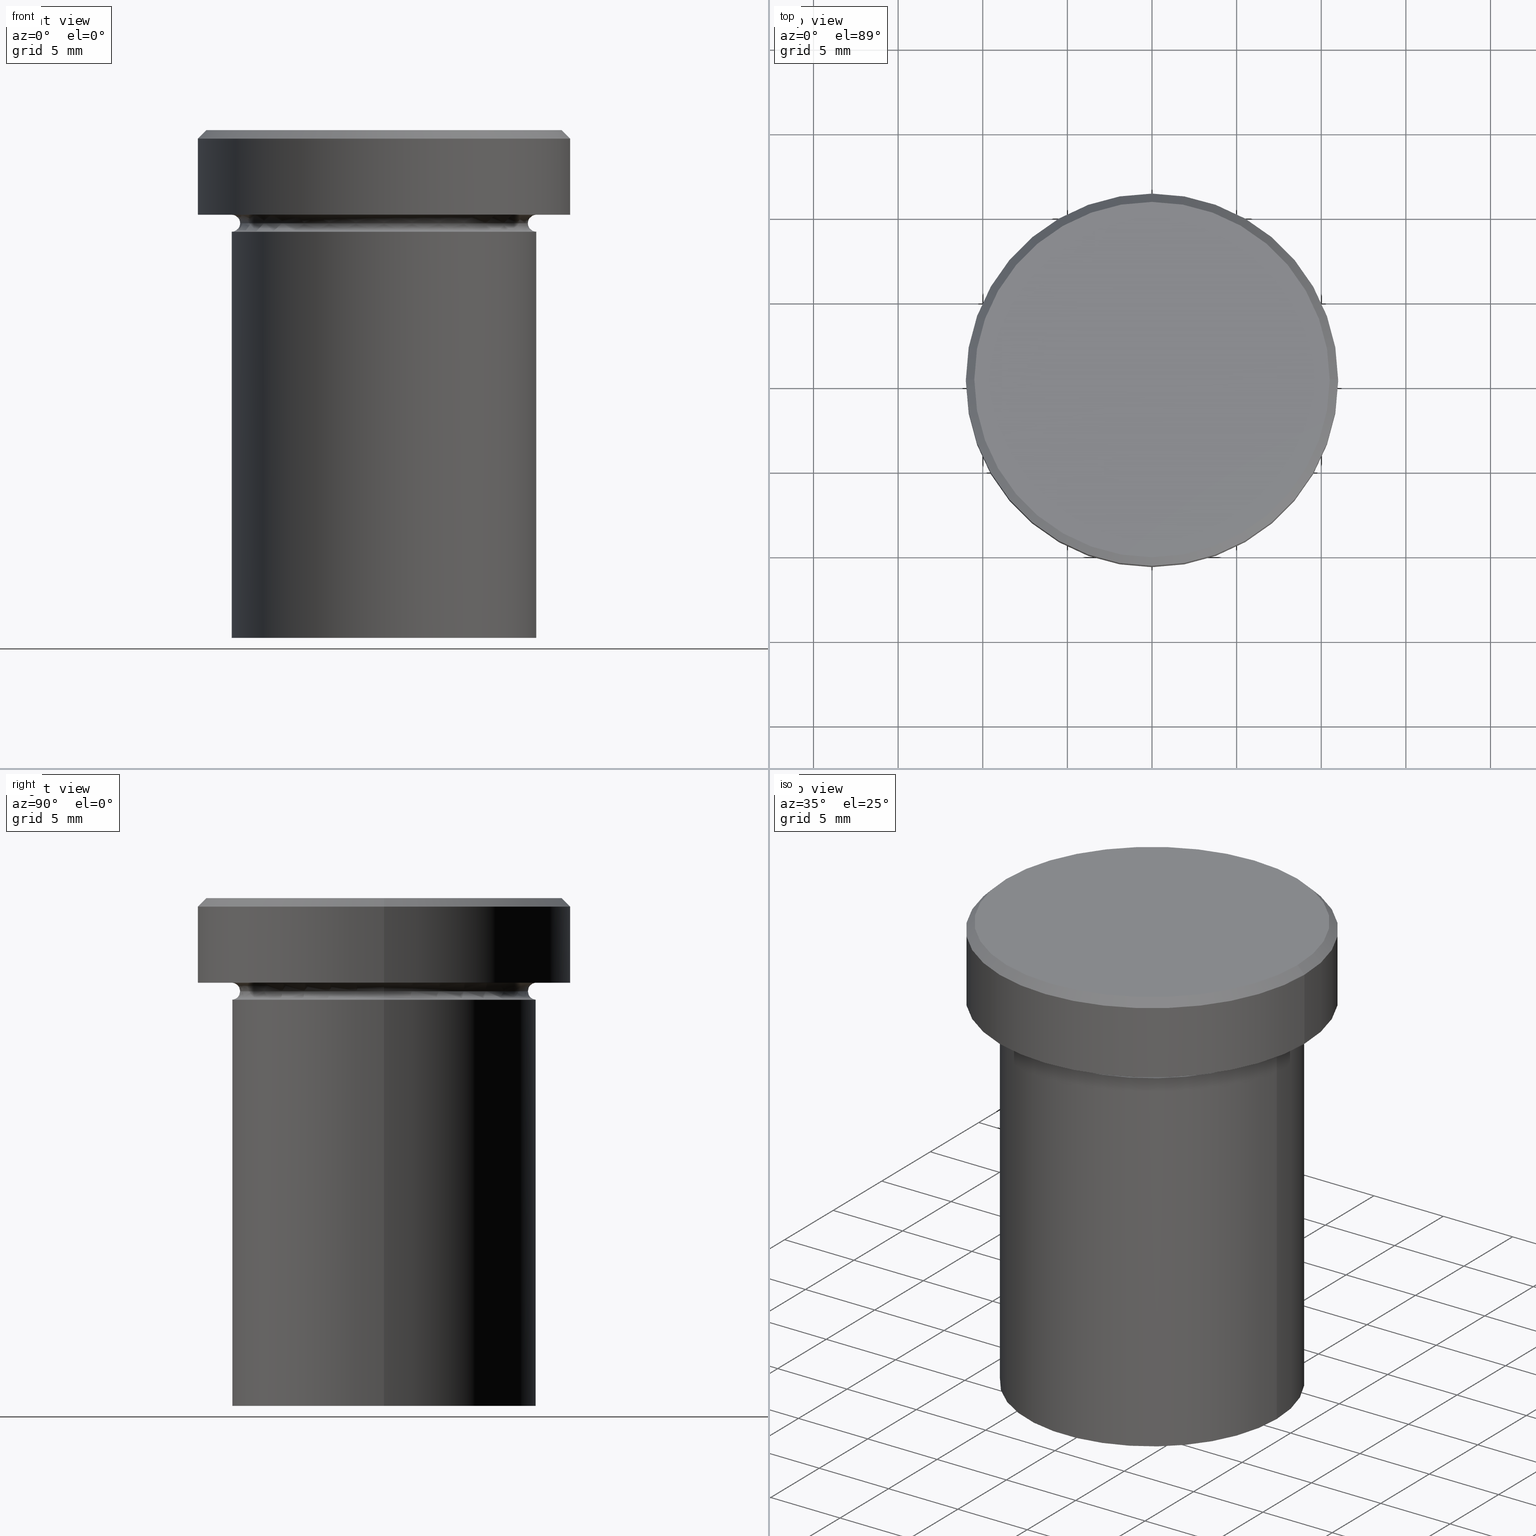
[diagram: canonical four-view strip — front | top / right | iso, engineering-drawing reading convention]
A machine part, canonical four-view strip (front | top / right | iso — engineering-drawing reading convention). The complete STEP part file that produces these views, byte-faithful:
ISO-10303-21;
HEADER;
FILE_DESCRIPTION (( 'STEP AP203' ),
    '1' );
FILE_NAME ('a921.STEP',
    '2024-01-02T22:01:32',
    ( '' ),
    ( '' ),
    'SwSTEP 2.0',
    'SolidWorks 2019',
    '' );
FILE_SCHEMA (( 'CONFIG_CONTROL_DESIGN' ));
ENDSEC;

DATA;
#1 = DIRECTION ( 'NONE',  ( 1.000000000000000000, 0.000000000000000000, 0.000000000000000000 ) ) ;
#2 = CARTESIAN_POINT ( 'NONE',  ( 0.000000000000000000, 0.000000000000000000, 0.000000000000000000 ) ) ;
#3 = CIRCLE ( 'NONE', #142, 10.49999999999999822 ) ;
#4 = PERSON_AND_ORGANIZATION_ROLE ( 'design_supplier' ) ;
#5 = FACE_BOUND ( 'NONE', #215, .T. ) ;
#6 = CARTESIAN_POINT ( 'NONE',  ( 11.00000000000000000, 0.000000000000000000, -0.5000000000000004441 ) ) ;
#7 = ADVANCED_FACE ( 'NONE', ( #395 ), #62, .F. ) ;
#8 = DIRECTION ( 'NONE',  ( 1.000000000000000000, 0.000000000000000000, 0.000000000000000000 ) ) ;
#9 = FACE_OUTER_BOUND ( 'NONE', #109, .T. ) ;
#10 = VECTOR ( 'NONE', #19, 1000.000000000000000 ) ;
#11 = CYLINDRICAL_SURFACE ( 'NONE', #39, 9.000000000000000000 ) ;
#12 = VERTEX_POINT ( 'NONE', #49 ) ;
#13 = PRODUCT_DEFINITION_SHAPE ( 'NONE', 'NONE',  #182 ) ;
#14 = ORIENTED_EDGE ( 'NONE', *, *, #400, .T. ) ;
#15 = DIRECTION ( 'NONE',  ( -1.000000000000000000, 0.000000000000000000, 0.000000000000000000 ) ) ;
#16 = CARTESIAN_POINT ( 'NONE',  ( 0.000000000000000000, 0.000000000000000000, 0.000000000000000000 ) ) ;
#17 = EDGE_CURVE ( 'NONE', #77, #259, #326, .T. ) ;
#18 = AXIS2_PLACEMENT_3D ( 'NONE', #174, #68, #377 ) ;
#19 = DIRECTION ( 'NONE',  ( -0.000000000000000000, -0.000000000000000000, 1.000000000000000000 ) ) ;
#20 = ORIENTED_EDGE ( 'NONE', *, *, #201, .F. ) ;
#21 = CARTESIAN_POINT ( 'NONE',  ( -10.49999999999999822, 0.000000000000000000, 0.000000000000000000 ) ) ;
#22 = ORIENTED_EDGE ( 'NONE', *, *, #262, .F. ) ;
#23 = DIRECTION ( 'NONE',  ( -1.000000000000000000, 0.000000000000000000, -0.000000000000000000 ) ) ;
#24 = CARTESIAN_POINT ( 'NONE',  ( 11.00000000000000000, 0.000000000000000000, 0.000000000000000000 ) ) ;
#25 = ORIENTED_EDGE ( 'NONE', *, *, #391, .F. ) ;
#26 = ORIENTED_EDGE ( 'NONE', *, *, #260, .T. ) ;
#27 = CARTESIAN_POINT ( 'NONE',  ( 0.000000000000000000, 0.000000000000000000, 0.000000000000000000 ) ) ;
#28 = CALENDAR_DATE ( 2024, 2, 1 ) ;
#29 = AXIS2_PLACEMENT_3D ( 'NONE', #357, #190, #15 ) ;
#30 = DESIGN_CONTEXT ( 'detailed design', #289, 'design' ) ;
#31 = EDGE_LOOP ( 'NONE', ( #117, #26, #161, #55 ) ) ;
#32 = EDGE_CURVE ( 'NONE', #12, #193, #369, .T. ) ;
#33 = APPROVAL_STATUS ( 'not_yet_approved' ) ;
#34 = EDGE_CURVE ( 'NONE', #188, #193, #171, .T. ) ;
#35 = ORIENTED_EDGE ( 'NONE', *, *, #194, .F. ) ;
#36 = CIRCLE ( 'NONE', #103, 0.5000000000000004441 ) ;
#37 = COORDINATED_UNIVERSAL_TIME_OFFSET ( 1, 0, .AHEAD. ) ;
#38 = APPROVAL_ROLE ( '' ) ;
#39 = AXIS2_PLACEMENT_3D ( 'NONE', #284, #276, #210 ) ;
#40 = AXIS2_PLACEMENT_3D ( 'NONE', #27, #92, #104 ) ;
#41 = DIRECTION ( 'NONE',  ( 1.000000000000000000, 0.000000000000000000, 0.000000000000000000 ) ) ;
#42 = DATE_AND_TIME ( #81, #331 ) ;
#43 = CYLINDRICAL_SURFACE ( 'NONE', #134, 11.00000000000000000 ) ;
#44 = DIRECTION ( 'NONE',  ( 0.000000000000000000, 0.000000000000000000, -1.000000000000000000 ) ) ;
#45 = CARTESIAN_POINT ( 'NONE',  ( 0.000000000000000000, 0.000000000000000000, 0.000000000000000000 ) ) ;
#46 = DIRECTION ( 'NONE',  ( -0.000000000000000000, -0.000000000000000000, 1.000000000000000000 ) ) ;
#47 = EDGE_CURVE ( 'NONE', #235, #133, #126, .T. ) ;
#48 = CARTESIAN_POINT ( 'NONE',  ( -11.00000000000000000, 1.347111479062088405E-15, 0.000000000000000000 ) ) ;
#49 = CARTESIAN_POINT ( 'NONE',  ( -11.00000000000000000, 1.347111479062088405E-15, -0.5000000000000004441 ) ) ;
#50 = AXIS2_PLACEMENT_3D ( 'NONE', #402, #373, #339 ) ;
#51 = DIRECTION ( 'NONE',  ( -0.7071067811865474617, 0.000000000000000000, -0.7071067811865474617 ) ) ;
#52 = DIRECTION ( 'NONE',  ( 1.000000000000000000, 0.000000000000000000, 0.000000000000000000 ) ) ;
#53 = DIRECTION ( 'NONE',  ( -1.000000000000000000, 0.000000000000000000, 0.000000000000000000 ) ) ;
#54 = CARTESIAN_POINT ( 'NONE',  ( -11.00000000000000000, 1.347111479062088405E-15, -5.000000000000000000 ) ) ;
#55 = ORIENTED_EDGE ( 'NONE', *, *, #153, .F. ) ;
#56 = CIRCLE ( 'NONE', #380, 0.5000000000000004441 ) ;
#57 = ADVANCED_FACE ( 'NONE', ( #151 ), #121, .F. ) ;
#58 = EDGE_LOOP ( 'NONE', ( #113, #173, #345, #359 ) ) ;
#59 = VERTEX_POINT ( 'NONE', #64 ) ;
#60 = DIRECTION ( 'NONE',  ( 0.000000000000000000, 0.000000000000000000, -1.000000000000000000 ) ) ;
#61 = ORIENTED_EDGE ( 'NONE', *, *, #194, .T. ) ;
#62 = TOROIDAL_SURFACE ( 'NONE', #244, 9.000000000000000000, 0.5000000000000000000 ) ;
#63 = CIRCLE ( 'NONE', #29, 9.000000000000000000 ) ;
#64 = CARTESIAN_POINT ( 'NONE',  ( -8.499999999999998224, 1.071565949253933927E-15, -5.500000000000000000 ) ) ;
#65 = PLANE ( 'NONE',  #40 ) ;
#66 = CARTESIAN_POINT ( 'NONE',  ( 9.000000000000000000, 0.000000000000000000, -6.000000000000000000 ) ) ;
#67 = CC_DESIGN_PERSON_AND_ORGANIZATION_ASSIGNMENT ( #375, #183, ( #185 ) ) ;
#68 = DIRECTION ( 'NONE',  ( 0.000000000000000000, 0.000000000000000000, -1.000000000000000000 ) ) ;
#69 = CARTESIAN_POINT ( 'NONE',  ( 0.000000000000000000, 0.000000000000000000, 0.000000000000000000 ) ) ;
#70 = CARTESIAN_POINT ( 'NONE',  ( 0.000000000000000000, 0.000000000000000000, -6.000000000000000000 ) ) ;
#71 = PERSON_AND_ORGANIZATION_ROLE ( 'creator' ) ;
#72 = DIRECTION ( 'NONE',  ( -1.000000000000000000, 0.000000000000000000, 0.000000000000000000 ) ) ;
#73 = SECURITY_CLASSIFICATION_LEVEL ( 'unclassified' ) ;
#74 = CC_DESIGN_PERSON_AND_ORGANIZATION_ASSIGNMENT ( #179, #205, ( #80 ) ) ;
#75 = CARTESIAN_POINT ( 'NONE',  ( 11.00000000000000000, 0.000000000000000000, -5.000000000000000000 ) ) ;
#76 = DIRECTION ( 'NONE',  ( -1.000000000000000000, 0.000000000000000000, 0.000000000000000000 ) ) ;
#77 = VERTEX_POINT ( 'NONE', #106 ) ;
#78 = EDGE_LOOP ( 'NONE', ( #324, #111 ) ) ;
#79 = AXIS2_PLACEMENT_3D ( 'NONE', #258, #292, #23 ) ;
#80 = PRODUCT ( 'a921', 'a921', '', ( #228 ) ) ;
#81 = CALENDAR_DATE ( 2024, 2, 1 ) ;
#82 = DIRECTION ( 'NONE',  ( 0.7071067811865474617, 8.659560562354932858E-17, -0.7071067811865474617 ) ) ;
#83 = EDGE_LOOP ( 'NONE', ( #35, #172, #241, #408 ) ) ;
#84 = DIRECTION ( 'NONE',  ( 0.000000000000000000, 0.000000000000000000, -1.000000000000000000 ) ) ;
#85 = CIRCLE ( 'NONE', #230, 10.49999999999999822 ) ;
#86 = VERTEX_POINT ( 'NONE', #346 ) ;
#87 = CARTESIAN_POINT ( 'NONE',  ( 8.499999999999998224, 0.000000000000000000, -5.500000000000000000 ) ) ;
#88 = EDGE_LOOP ( 'NONE', ( #351, #320, #319, #343 ) ) ;
#89 = DIRECTION ( 'NONE',  ( 0.000000000000000000, 0.000000000000000000, -1.000000000000000000 ) ) ;
#90 = CARTESIAN_POINT ( 'NONE',  ( 0.000000000000000000, 0.000000000000000000, -5.000000000000000000 ) ) ;
#91 = ORIENTED_EDGE ( 'NONE', *, *, #307, .T. ) ;
#92 = DIRECTION ( 'NONE',  ( 0.000000000000000000, -0.000000000000000000, 1.000000000000000000 ) ) ;
#93 = EDGE_LOOP ( 'NONE', ( #199, #20 ) ) ;
#94 = CIRCLE ( 'NONE', #305, 11.00000000000000000 ) ;
#95 = ADVANCED_FACE ( 'NONE', ( #304 ), #219, .F. ) ;
#96 = VERTEX_POINT ( 'NONE', #105 ) ;
#97 = FACE_OUTER_BOUND ( 'NONE', #314, .T. ) ;
#98 = AXIS2_PLACEMENT_3D ( 'NONE', #250, #192, #156 ) ;
#99 = APPROVAL_PERSON_ORGANIZATION ( #118, #214, #362 ) ;
#100 = LINE ( 'NONE', #155, #167 ) ;
#101 = PERSON ( 'NEUR�EN�', 'NEUR�EN�', 'NEUR�EN�', ('NEUR�EN�'), ('NEUR�EN�'), ('NEUR�EN�') ) ;
#102 = ADVANCED_FACE ( 'NONE', ( #283 ), #11, .T. ) ;
#103 = AXIS2_PLACEMENT_3D ( 'NONE', #318, #247, #350 ) ;
#104 = DIRECTION ( 'NONE',  ( 1.000000000000000000, 0.000000000000000000, 0.000000000000000000 ) ) ;
#105 = CARTESIAN_POINT ( 'NONE',  ( -9.000000000000000000, 0.000000000000000000, -4.999999999999999112 ) ) ;
#106 = CARTESIAN_POINT ( 'NONE',  ( -9.000000000000000000, 1.102182119232617714E-15, -30.00000000000000000 ) ) ;
#107 = APPLICATION_PROTOCOL_DEFINITION ( 'international standard', 'config_control_design', 1994, #217 ) ;
#108 = ORIENTED_EDGE ( 'NONE', *, *, #169, .F. ) ;
#109 = EDGE_LOOP ( 'NONE', ( #164, #392, #255, #293 ) ) ;
#110 = AXIS2_PLACEMENT_3D ( 'NONE', #223, #356, #399 ) ;
#111 = ORIENTED_EDGE ( 'NONE', *, *, #344, .F. ) ;
#112 = AXIS2_PLACEMENT_3D ( 'NONE', #227, #335, #72 ) ;
#113 = ORIENTED_EDGE ( 'NONE', *, *, #338, .T. ) ;
#114 = ADVANCED_FACE ( 'NONE', ( #336 ), #242, .T. ) ;
#115 = AXIS2_PLACEMENT_3D ( 'NONE', #180, #239, #1 ) ;
#116 = DATE_AND_TIME ( #28, #282 ) ;
#117 = ORIENTED_EDGE ( 'NONE', *, *, #47, .F. ) ;
#118 = PERSON_AND_ORGANIZATION ( #101, #237 ) ;
#119 = FACE_OUTER_BOUND ( 'NONE', #58, .T. ) ;
#120 = CARTESIAN_POINT ( 'NONE',  ( 9.000000000000000000, 0.000000000000000000, -5.500000000000000000 ) ) ;
#121 = TOROIDAL_SURFACE ( 'NONE', #409, 9.000000000000000000, 0.5000000000000000000 ) ;
#122 = APPROVAL_DATE_TIME ( #271, #393 ) ;
#123 = VECTOR ( 'NONE', #82, 1000.000000000000114 ) ;
#124 = AXIS2_PLACEMENT_3D ( 'NONE', #70, #240, #376 ) ;
#125 = EDGE_CURVE ( 'NONE', #254, #259, #251, .T. ) ;
#126 = CIRCLE ( 'NONE', #110, 0.5000000000000004441 ) ;
#127 = CIRCLE ( 'NONE', #158, 9.000000000000000000 ) ;
#128 = CC_DESIGN_DATE_AND_TIME_ASSIGNMENT ( #116, #294, ( #182 ) ) ;
#129 = ORIENTED_EDGE ( 'NONE', *, *, #169, .T. ) ;
#130 = DIRECTION ( 'NONE',  ( -0.000000000000000000, -0.000000000000000000, 1.000000000000000000 ) ) ;
#131 = AXIS2_PLACEMENT_3D ( 'NONE', #340, #130, #327 ) ;
#132 = DIRECTION ( 'NONE',  ( 1.000000000000000000, 0.000000000000000000, 0.000000000000000000 ) ) ;
#133 = VERTEX_POINT ( 'NONE', #141 ) ;
#134 = AXIS2_PLACEMENT_3D ( 'NONE', #16, #381, #145 ) ;
#135 = CC_DESIGN_APPROVAL ( #406, ( #185 ) ) ;
#136 = ORIENTED_EDGE ( 'NONE', *, *, #17, .F. ) ;
#137 = CC_DESIGN_PERSON_AND_ORGANIZATION_ASSIGNMENT ( #270, #71, ( #355 ) ) ;
#138 = ADVANCED_BREP_SHAPE_REPRESENTATION ( 'a921', ( #274, #396 ), #281 ) ;
#139 = DIRECTION ( 'NONE',  ( -0.000000000000000000, -0.000000000000000000, 1.000000000000000000 ) ) ;
#140 = ORIENTED_EDGE ( 'NONE', *, *, #47, .T. ) ;
#141 = CARTESIAN_POINT ( 'NONE',  ( 9.000000000000000000, 1.102182119232617714E-15, -4.999999999999999112 ) ) ;
#142 = AXIS2_PLACEMENT_3D ( 'NONE', #2, #243, #279 ) ;
#143 = FACE_OUTER_BOUND ( 'NONE', #401, .T. ) ;
#144 = ADVANCED_FACE ( 'NONE', ( #286 ), #361, .F. ) ;
#145 = DIRECTION ( 'NONE',  ( 1.000000000000000000, 0.000000000000000000, 0.000000000000000000 ) ) ;
#146 = ORIENTED_EDGE ( 'NONE', *, *, #308, .F. ) ;
#147 = CALENDAR_DATE ( 2024, 2, 1 ) ;
#148 = CIRCLE ( 'NONE', #364, 9.000000000000000000 ) ;
#149 = LOCAL_TIME ( 23, 1, 32.00000000000000000, #37 ) ;
#150 = DIRECTION ( 'NONE',  ( 0.000000000000000000, -1.000000000000000000, 0.000000000000000000 ) ) ;
#151 = FACE_OUTER_BOUND ( 'NONE', #403, .T. ) ;
#152 = VECTOR ( 'NONE', #139, 1000.000000000000000 ) ;
#153 = EDGE_CURVE ( 'NONE', #133, #96, #148, .T. ) ;
#154 = DIRECTION ( 'NONE',  ( -0.000000000000000000, -0.000000000000000000, 1.000000000000000000 ) ) ;
#155 = CARTESIAN_POINT ( 'NONE',  ( 9.000000000000000000, 0.000000000000000000, 0.000000000000000000 ) ) ;
#156 = DIRECTION ( 'NONE',  ( 1.000000000000000000, 0.000000000000000000, 0.000000000000000000 ) ) ;
#157 = CARTESIAN_POINT ( 'NONE',  ( 0.000000000000000000, 9.000000000000000000, -30.00000000000000000 ) ) ;
#158 = AXIS2_PLACEMENT_3D ( 'NONE', #317, #46, #132 ) ;
#159 = EDGE_CURVE ( 'NONE', #266, #86, #3, .T. ) ;
#160 = CC_DESIGN_APPROVAL ( #393, ( #182 ) ) ;
#161 = ORIENTED_EDGE ( 'NONE', *, *, #252, .T. ) ;
#162 =( LENGTH_UNIT ( ) NAMED_UNIT ( * ) SI_UNIT ( .MILLI., .METRE. ) );
#163 = DIRECTION ( 'NONE',  ( -0.000000000000000000, -0.000000000000000000, 1.000000000000000000 ) ) ;
#164 = ORIENTED_EDGE ( 'NONE', *, *, #354, .F. ) ;
#165 = LINE ( 'NONE', #48, #10 ) ;
#166 = ORIENTED_EDGE ( 'NONE', *, *, #391, .T. ) ;
#167 = VECTOR ( 'NONE', #268, 1000.000000000000000 ) ;
#168 = DIRECTION ( 'NONE',  ( -0.000000000000000000, -0.000000000000000000, 1.000000000000000000 ) ) ;
#169 = EDGE_CURVE ( 'NONE', #259, #254, #299, .T. ) ;
#170 = DIRECTION ( 'NONE',  ( -0.000000000000000000, -0.000000000000000000, 1.000000000000000000 ) ) ;
#171 = LINE ( 'NONE', #24, #152 ) ;
#172 = ORIENTED_EDGE ( 'NONE', *, *, #260, .F. ) ;
#173 = ORIENTED_EDGE ( 'NONE', *, *, #354, .T. ) ;
#174 = CARTESIAN_POINT ( 'NONE',  ( 0.000000000000000000, 0.000000000000000000, -0.5000000000000004441 ) ) ;
#175 = ORIENTED_EDGE ( 'NONE', *, *, #344, .T. ) ;
#176 = DATE_AND_TIME ( #147, #348 ) ;
#177 = DIRECTION ( 'NONE',  ( -0.000000000000000000, -0.000000000000000000, 1.000000000000000000 ) ) ;
#178 = CLOSED_SHELL ( 'NONE', ( #269, #57, #7, #114, #358, #278, #382, #221, #232, #102, #95, #144, #277 ) ) ;
#179 = PERSON_AND_ORGANIZATION ( #101, #237 ) ;
#180 = CARTESIAN_POINT ( 'NONE',  ( 0.000000000000000000, 0.000000000000000000, -5.500000000000000000 ) ) ;
#181 = FACE_OUTER_BOUND ( 'NONE', #93, .T. ) ;
#182 = PRODUCT_DEFINITION ( 'NEZN�M�', '', #355, #30 ) ;
#183 = PERSON_AND_ORGANIZATION_ROLE ( 'classification_officer' ) ;
#184 = CIRCLE ( 'NONE', #18, 11.00000000000000000 ) ;
#185 = SECURITY_CLASSIFICATION ( '', '', #73 ) ;
#186 = ORIENTED_EDGE ( 'NONE', *, *, #125, .F. ) ;
#187 = AXIS2_PLACEMENT_3D ( 'NONE', #407, #177, #333 ) ;
#188 = VERTEX_POINT ( 'NONE', #75 ) ;
#189 = CC_DESIGN_SECURITY_CLASSIFICATION ( #185, ( #355 ) ) ;
#190 = DIRECTION ( 'NONE',  ( -0.000000000000000000, -0.000000000000000000, 1.000000000000000000 ) ) ;
#191 = DIRECTION ( 'NONE',  ( -0.000000000000000000, -0.000000000000000000, 1.000000000000000000 ) ) ;
#192 = DIRECTION ( 'NONE',  ( -0.000000000000000000, -0.000000000000000000, 1.000000000000000000 ) ) ;
#193 = VERTEX_POINT ( 'NONE', #6 ) ;
#194 = EDGE_CURVE ( 'NONE', #59, #259, #36, .T. ) ;
#195 = EDGE_CURVE ( 'NONE', #59, #235, #264, .T. ) ;
#196 = ORIENTED_EDGE ( 'NONE', *, *, #332, .T. ) ;
#197 = AXIS2_PLACEMENT_3D ( 'NONE', #206, #302, #211 ) ;
#198 = CARTESIAN_POINT ( 'NONE',  ( 10.49999999999999822, 1.285879139104720633E-15, 0.000000000000000000 ) ) ;
#199 = ORIENTED_EDGE ( 'NONE', *, *, #338, .F. ) ;
#200 = DIRECTION ( 'NONE',  ( 1.000000000000000000, 0.000000000000000000, 0.000000000000000000 ) ) ;
#201 = EDGE_CURVE ( 'NONE', #298, #188, #94, .T. ) ;
#202 = CARTESIAN_POINT ( 'NONE',  ( 0.000000000000000000, 0.000000000000000000, -5.000000000000000000 ) ) ;
#203 = COORDINATED_UNIVERSAL_TIME_OFFSET ( 1, 0, .AHEAD. ) ;
#204 = CC_DESIGN_PERSON_AND_ORGANIZATION_ASSIGNMENT ( #209, #383, ( #182 ) ) ;
#205 = PERSON_AND_ORGANIZATION_ROLE ( 'design_owner' ) ;
#206 = CARTESIAN_POINT ( 'NONE',  ( -9.000000000000000000, 0.000000000000000000, -5.500000000000000000 ) ) ;
#207 = APPLICATION_PROTOCOL_DEFINITION ( 'international standard', 'config_control_design', 1994, #289 ) ;
#208 = CARTESIAN_POINT ( 'NONE',  ( 0.000000000000000000, 0.000000000000000000, -5.500000000000000000 ) ) ;
#209 = PERSON_AND_ORGANIZATION ( #101, #237 ) ;
#210 = DIRECTION ( 'NONE',  ( 1.000000000000000000, 0.000000000000000000, 0.000000000000000000 ) ) ;
#211 = DIRECTION ( 'NONE',  ( 0.000000000000000000, 0.000000000000000000, -1.000000000000000000 ) ) ;
#212 = DIRECTION ( 'NONE',  ( 1.000000000000000000, 0.000000000000000000, 0.000000000000000000 ) ) ;
#213 = AXIS2_PLACEMENT_3D ( 'NONE', #234, #89, #53 ) ;
#214 = APPROVAL ( #33, 'NEUR�EN�' ) ;
#215 = EDGE_LOOP ( 'NONE', ( #196, #226 ) ) ;
#216 = ORIENTED_EDGE ( 'NONE', *, *, #225, .F. ) ;
#217 = APPLICATION_CONTEXT ( 'configuration controlled 3d designs of mechanical parts and assemblies' ) ;
#218 = APPROVAL_STATUS ( 'not_yet_approved' ) ;
#219 = TOROIDAL_SURFACE ( 'NONE', #387, 9.000000000000000000, 0.5000000000000000000 ) ;
#220 = AXIS2_PLACEMENT_3D ( 'NONE', #90, #248, #329 ) ;
#221 = ADVANCED_FACE ( 'NONE', ( #9 ), #43, .T. ) ;
#222 = PRODUCT_RELATED_PRODUCT_CATEGORY ( 'detail', '', ( #80 ) ) ;
#223 = CARTESIAN_POINT ( 'NONE',  ( 9.000000000000000000, 1.102182119232617714E-15, -5.500000000000000000 ) ) ;
#224 = CARTESIAN_POINT ( 'NONE',  ( 10.49999999999999822, 1.316495309083404420E-15, 0.000000000000000000 ) ) ;
#225 = EDGE_CURVE ( 'NONE', #193, #12, #184, .T. ) ;
#226 = ORIENTED_EDGE ( 'NONE', *, *, #153, .T. ) ;
#227 = CARTESIAN_POINT ( 'NONE',  ( 0.000000000000000000, 0.000000000000000000, 0.000000000000000000 ) ) ;
#228 = MECHANICAL_CONTEXT ( 'NONE', #217, 'mechanical' ) ;
#229 = EDGE_LOOP ( 'NONE', ( #14, #233, #186, #25 ) ) ;
#230 = AXIS2_PLACEMENT_3D ( 'NONE', #69, #337, #41 ) ;
#231 = DIRECTION ( 'NONE',  ( 1.000000000000000000, 0.000000000000000000, 0.000000000000000000 ) ) ;
#232 = ADVANCED_FACE ( 'NONE', ( #5, #181 ), #296, .T. ) ;
#233 = ORIENTED_EDGE ( 'NONE', *, *, #17, .T. ) ;
#234 = CARTESIAN_POINT ( 'NONE',  ( 0.000000000000000000, 0.000000000000000000, 0.000000000000000000 ) ) ;
#235 = VERTEX_POINT ( 'NONE', #87 ) ;
#236 = PERSON_AND_ORGANIZATION ( #101, #237 ) ;
#237 = ORGANIZATION ( 'NEUR�EN�', 'NEUR�EN�', '' ) ;
#238 = EDGE_CURVE ( 'NONE', #235, #254, #56, .T. ) ;
#239 = DIRECTION ( 'NONE',  ( -0.000000000000000000, -0.000000000000000000, 1.000000000000000000 ) ) ;
#240 = DIRECTION ( 'NONE',  ( -0.000000000000000000, -0.000000000000000000, 1.000000000000000000 ) ) ;
#241 = ORIENTED_EDGE ( 'NONE', *, *, #238, .T. ) ;
#242 = CYLINDRICAL_SURFACE ( 'NONE', #303, 9.000000000000000000 ) ;
#243 = DIRECTION ( 'NONE',  ( -0.000000000000000000, -0.000000000000000000, 1.000000000000000000 ) ) ;
#244 = AXIS2_PLACEMENT_3D ( 'NONE', #322, #170, #200 ) ;
#245 = CIRCLE ( 'NONE', #115, 8.499999999999998224 ) ;
#246 = CARTESIAN_POINT ( 'NONE',  ( 0.000000000000000000, 0.000000000000000000, -0.5000000000000004441 ) ) ;
#247 = DIRECTION ( 'NONE',  ( 1.224646799147353207E-16, 1.000000000000000000, 0.000000000000000000 ) ) ;
#248 = DIRECTION ( 'NONE',  ( -0.000000000000000000, -0.000000000000000000, 1.000000000000000000 ) ) ;
#249 = DATE_TIME_ROLE ( 'classification_date' ) ;
#250 = CARTESIAN_POINT ( 'NONE',  ( 0.000000000000000000, 0.000000000000000000, -5.500000000000000000 ) ) ;
#251 = CIRCLE ( 'NONE', #131, 9.000000000000000000 ) ;
#252 = EDGE_CURVE ( 'NONE', #59, #96, #325, .T. ) ;
#253 = SHAPE_DEFINITION_REPRESENTATION ( #13, #138 ) ;
#254 = VERTEX_POINT ( 'NONE', #66 ) ;
#255 = ORIENTED_EDGE ( 'NONE', *, *, #34, .T. ) ;
#256 = COORDINATED_UNIVERSAL_TIME_OFFSET ( 1, 0, .AHEAD. ) ;
#257 = AXIS2_PLACEMENT_3D ( 'NONE', #157, #44, #288 ) ;
#258 = CARTESIAN_POINT ( 'NONE',  ( 0.000000000000000000, 11.00000000000000000, -5.000000000000000000 ) ) ;
#259 = VERTEX_POINT ( 'NONE', #272 ) ;
#260 = EDGE_CURVE ( 'NONE', #235, #59, #245, .T. ) ;
#261 = DIRECTION ( 'NONE',  ( 1.000000000000000000, 0.000000000000000000, 0.000000000000000000 ) ) ;
#262 = EDGE_CURVE ( 'NONE', #86, #266, #85, .T. ) ;
#263 = EDGE_LOOP ( 'NONE', ( #136, #175, #166, #108 ) ) ;
#264 = CIRCLE ( 'NONE', #98, 8.499999999999998224 ) ;
#265 = DIRECTION ( 'NONE',  ( -0.000000000000000000, -0.000000000000000000, 1.000000000000000000 ) ) ;
#266 = VERTEX_POINT ( 'NONE', #224 ) ;
#267 = CARTESIAN_POINT ( 'NONE',  ( 0.000000000000000000, 0.000000000000000000, 0.000000000000000000 ) ) ;
#268 = DIRECTION ( 'NONE',  ( -0.000000000000000000, -0.000000000000000000, 1.000000000000000000 ) ) ;
#269 = ADVANCED_FACE ( 'NONE', ( #300 ), #313, .T. ) ;
#270 = PERSON_AND_ORGANIZATION ( #101, #237 ) ;
#271 = DATE_AND_TIME ( #306, #149 ) ;
#272 = CARTESIAN_POINT ( 'NONE',  ( -9.000000000000000000, 1.102182119232617714E-15, -6.000000000000000000 ) ) ;
#273 = AXIS2_PLACEMENT_3D ( 'NONE', #246, #84, #52 ) ;
#274 = MANIFOLD_SOLID_BREP ( 'Zkosen�1', #178 ) ;
#275 = CIRCLE ( 'NONE', #220, 11.00000000000000000 ) ;
#276 = DIRECTION ( 'NONE',  ( -0.000000000000000000, -0.000000000000000000, 1.000000000000000000 ) ) ;
#277 = ADVANCED_FACE ( 'NONE', ( #143 ), #341, .T. ) ;
#278 = ADVANCED_FACE ( 'NONE', ( #368 ), #379, .T. ) ;
#279 = DIRECTION ( 'NONE',  ( 1.000000000000000000, 0.000000000000000000, 0.000000000000000000 ) ) ;
#280 = CARTESIAN_POINT ( 'NONE',  ( 0.000000000000000000, 0.000000000000000000, -5.000000000000000000 ) ) ;
#281 =( GEOMETRIC_REPRESENTATION_CONTEXT ( 3 ) GLOBAL_UNCERTAINTY_ASSIGNED_CONTEXT ( ( #398 ) ) GLOBAL_UNIT_ASSIGNED_CONTEXT ( ( #162, #352, #384 ) ) REPRESENTATION_CONTEXT ( 'NONE', 'WORKASPACE' ) );
#282 = LOCAL_TIME ( 23, 1, 32.00000000000000000, #342 ) ;
#283 = FACE_OUTER_BOUND ( 'NONE', #263, .T. ) ;
#284 = CARTESIAN_POINT ( 'NONE',  ( 0.000000000000000000, 0.000000000000000000, 0.000000000000000000 ) ) ;
#285 = ORIENTED_EDGE ( 'NONE', *, *, #195, .F. ) ;
#286 = FACE_OUTER_BOUND ( 'NONE', #31, .T. ) ;
#287 = DIRECTION ( 'NONE',  ( 1.000000000000000000, 0.000000000000000000, 0.000000000000000000 ) ) ;
#288 = DIRECTION ( 'NONE',  ( -1.000000000000000000, 0.000000000000000000, -0.000000000000000000 ) ) ;
#289 = APPLICATION_CONTEXT ( 'configuration controlled 3d designs of mechanical parts and assemblies' ) ;
#290 = DIRECTION ( 'NONE',  ( -0.000000000000000000, -0.000000000000000000, 1.000000000000000000 ) ) ;
#291 = CC_DESIGN_DATE_AND_TIME_ASSIGNMENT ( #349, #249, ( #185 ) ) ;
#292 = DIRECTION ( 'NONE',  ( 0.000000000000000000, 0.000000000000000000, -1.000000000000000000 ) ) ;
#293 = ORIENTED_EDGE ( 'NONE', *, *, #225, .T. ) ;
#294 = DATE_TIME_ROLE ( 'creation_date' ) ;
#295 = ORIENTED_EDGE ( 'NONE', *, *, #262, .T. ) ;
#296 = PLANE ( 'NONE',  #79 ) ;
#297 = ORIENTED_EDGE ( 'NONE', *, *, #195, .T. ) ;
#298 = VERTEX_POINT ( 'NONE', #54 ) ;
#299 = CIRCLE ( 'NONE', #124, 9.000000000000000000 ) ;
#300 = FACE_OUTER_BOUND ( 'NONE', #88, .T. ) ;
#301 = APPROVAL_STATUS ( 'not_yet_approved' ) ;
#302 = DIRECTION ( 'NONE',  ( -0.000000000000000000, -1.000000000000000000, -0.000000000000000000 ) ) ;
#303 = AXIS2_PLACEMENT_3D ( 'NONE', #378, #154, #212 ) ;
#304 = FACE_OUTER_BOUND ( 'NONE', #83, .T. ) ;
#305 = AXIS2_PLACEMENT_3D ( 'NONE', #280, #168, #287 ) ;
#306 = CALENDAR_DATE ( 2024, 2, 1 ) ;
#307 = EDGE_CURVE ( 'NONE', #86, #12, #385, .T. ) ;
#308 = EDGE_CURVE ( 'NONE', #266, #193, #353, .T. ) ;
#309 = DIRECTION ( 'NONE',  ( 0.000000000000000000, 0.000000000000000000, -1.000000000000000000 ) ) ;
#310 = CARTESIAN_POINT ( 'NONE',  ( 0.000000000000000000, 0.000000000000000000, -5.500000000000000000 ) ) ;
#311 = PERSON_AND_ORGANIZATION ( #101, #237 ) ;
#312 = ORIENTED_EDGE ( 'NONE', *, *, #159, .T. ) ;
#313 = CONICAL_SURFACE ( 'NONE', #213, 10.49999999999999822, 0.7853981633974482790 ) ;
#314 = EDGE_LOOP ( 'NONE', ( #295, #312 ) ) ;
#315 = APPROVAL_PERSON_ORGANIZATION ( #311, #406, #347 ) ;
#316 = DIRECTION ( 'NONE',  ( -1.000000000000000000, 0.000000000000000000, 0.000000000000000000 ) ) ;
#317 = CARTESIAN_POINT ( 'NONE',  ( 0.000000000000000000, 0.000000000000000000, -30.00000000000000000 ) ) ;
#318 = CARTESIAN_POINT ( 'NONE',  ( -9.000000000000000000, 1.102182119232617714E-15, -5.500000000000000000 ) ) ;
#319 = ORIENTED_EDGE ( 'NONE', *, *, #32, .F. ) ;
#320 = ORIENTED_EDGE ( 'NONE', *, *, #308, .T. ) ;
#321 = DIRECTION ( 'NONE',  ( 0.000000000000000000, 0.000000000000000000, 1.000000000000000000 ) ) ;
#322 = CARTESIAN_POINT ( 'NONE',  ( 0.000000000000000000, 0.000000000000000000, -5.500000000000000000 ) ) ;
#323 = CC_DESIGN_PERSON_AND_ORGANIZATION_ASSIGNMENT ( #236, #4, ( #355 ) ) ;
#324 = ORIENTED_EDGE ( 'NONE', *, *, #400, .F. ) ;
#325 = CIRCLE ( 'NONE', #197, 0.5000000000000004441 ) ;
#326 = LINE ( 'NONE', #328, #330 ) ;
#327 = DIRECTION ( 'NONE',  ( 1.000000000000000000, 0.000000000000000000, 0.000000000000000000 ) ) ;
#328 = CARTESIAN_POINT ( 'NONE',  ( -9.000000000000000000, 1.102182119232617714E-15, 0.000000000000000000 ) ) ;
#329 = DIRECTION ( 'NONE',  ( 1.000000000000000000, 0.000000000000000000, 0.000000000000000000 ) ) ;
#330 = VECTOR ( 'NONE', #290, 1000.000000000000000 ) ;
#331 = LOCAL_TIME ( 23, 1, 32.00000000000000000, #388 ) ;
#332 = EDGE_CURVE ( 'NONE', #96, #133, #63, .T. ) ;
#333 = DIRECTION ( 'NONE',  ( 1.000000000000000000, 0.000000000000000000, 0.000000000000000000 ) ) ;
#334 = PERSON_AND_ORGANIZATION ( #101, #237 ) ;
#335 = DIRECTION ( 'NONE',  ( 0.000000000000000000, 0.000000000000000000, -1.000000000000000000 ) ) ;
#336 = FACE_OUTER_BOUND ( 'NONE', #229, .T. ) ;
#337 = DIRECTION ( 'NONE',  ( -0.000000000000000000, -0.000000000000000000, 1.000000000000000000 ) ) ;
#338 = EDGE_CURVE ( 'NONE', #188, #298, #275, .T. ) ;
#339 = DIRECTION ( 'NONE',  ( -1.000000000000000000, 0.000000000000000000, 0.000000000000000000 ) ) ;
#340 = CARTESIAN_POINT ( 'NONE',  ( 0.000000000000000000, 0.000000000000000000, -6.000000000000000000 ) ) ;
#341 = CONICAL_SURFACE ( 'NONE', #112, 10.49999999999999822, 0.7853981633974482790 ) ;
#342 = COORDINATED_UNIVERSAL_TIME_OFFSET ( 1, 0, .AHEAD. ) ;
#343 = ORIENTED_EDGE ( 'NONE', *, *, #307, .F. ) ;
#344 = EDGE_CURVE ( 'NONE', #77, #360, #127, .T. ) ;
#345 = ORIENTED_EDGE ( 'NONE', *, *, #32, .T. ) ;
#346 = CARTESIAN_POINT ( 'NONE',  ( -10.49999999999999822, 0.000000000000000000, 0.000000000000000000 ) ) ;
#347 = APPROVAL_ROLE ( '' ) ;
#348 = LOCAL_TIME ( 23, 1, 32.00000000000000000, #203 ) ;
#349 = DATE_AND_TIME ( #394, #372 ) ;
#350 = DIRECTION ( 'NONE',  ( -1.000000000000000000, 1.224646799147353454E-16, 0.000000000000000000 ) ) ;
#351 = ORIENTED_EDGE ( 'NONE', *, *, #159, .F. ) ;
#352 =( NAMED_UNIT ( * ) PLANE_ANGLE_UNIT ( ) SI_UNIT ( $, .RADIAN. ) );
#353 = LINE ( 'NONE', #198, #123 ) ;
#354 = EDGE_CURVE ( 'NONE', #298, #12, #165, .T. ) ;
#355 = PRODUCT_DEFINITION_FORMATION_WITH_SPECIFIED_SOURCE ( 'LIBOVOLN�', '', #80, .NOT_KNOWN. ) ;
#356 = DIRECTION ( 'NONE',  ( -1.224646799147353207E-16, 1.000000000000000000, 0.000000000000000000 ) ) ;
#357 = CARTESIAN_POINT ( 'NONE',  ( 0.000000000000000000, 0.000000000000000000, -5.000000000000000000 ) ) ;
#358 = ADVANCED_FACE ( 'NONE', ( #119 ), #363, .T. ) ;
#359 = ORIENTED_EDGE ( 'NONE', *, *, #34, .F. ) ;
#360 = VERTEX_POINT ( 'NONE', #366 ) ;
#361 = TOROIDAL_SURFACE ( 'NONE', #50, 9.000000000000000000, 0.5000000000000000000 ) ;
#362 = APPROVAL_ROLE ( '' ) ;
#363 = CYLINDRICAL_SURFACE ( 'NONE', #389, 11.00000000000000000 ) ;
#364 = AXIS2_PLACEMENT_3D ( 'NONE', #202, #191, #76 ) ;
#365 = CC_DESIGN_APPROVAL ( #214, ( #355 ) ) ;
#366 = CARTESIAN_POINT ( 'NONE',  ( 9.000000000000000000, 0.000000000000000000, -30.00000000000000000 ) ) ;
#367 = APPROVAL_DATE_TIME ( #176, #214 ) ;
#368 = FACE_OUTER_BOUND ( 'NONE', #78, .T. ) ;
#369 = CIRCLE ( 'NONE', #273, 11.00000000000000000 ) ;
#370 = ORIENTED_EDGE ( 'NONE', *, *, #238, .F. ) ;
#371 = VECTOR ( 'NONE', #51, 1000.000000000000114 ) ;
#372 = LOCAL_TIME ( 23, 1, 32.00000000000000000, #256 ) ;
#373 = DIRECTION ( 'NONE',  ( 0.000000000000000000, 0.000000000000000000, -1.000000000000000000 ) ) ;
#374 = ORIENTED_EDGE ( 'NONE', *, *, #252, .F. ) ;
#375 = PERSON_AND_ORGANIZATION ( #101, #237 ) ;
#376 = DIRECTION ( 'NONE',  ( 1.000000000000000000, 0.000000000000000000, 0.000000000000000000 ) ) ;
#377 = DIRECTION ( 'NONE',  ( 1.000000000000000000, 0.000000000000000000, 0.000000000000000000 ) ) ;
#378 = CARTESIAN_POINT ( 'NONE',  ( 0.000000000000000000, 0.000000000000000000, 0.000000000000000000 ) ) ;
#379 = PLANE ( 'NONE',  #257 ) ;
#380 = AXIS2_PLACEMENT_3D ( 'NONE', #120, #150, #60 ) ;
#381 = DIRECTION ( 'NONE',  ( -0.000000000000000000, -0.000000000000000000, 1.000000000000000000 ) ) ;
#382 = ADVANCED_FACE ( 'NONE', ( #97 ), #65, .T. ) ;
#383 = PERSON_AND_ORGANIZATION_ROLE ( 'creator' ) ;
#384 =( NAMED_UNIT ( * ) SI_UNIT ( $, .STERADIAN. ) SOLID_ANGLE_UNIT ( ) );
#385 = LINE ( 'NONE', #21, #371 ) ;
#386 = APPROVAL_DATE_TIME ( #42, #406 ) ;
#387 = AXIS2_PLACEMENT_3D ( 'NONE', #310, #163, #8 ) ;
#388 = COORDINATED_UNIVERSAL_TIME_OFFSET ( 1, 0, .AHEAD. ) ;
#389 = AXIS2_PLACEMENT_3D ( 'NONE', #267, #265, #231 ) ;
#390 = ORIENTED_EDGE ( 'NONE', *, *, #332, .F. ) ;
#391 = EDGE_CURVE ( 'NONE', #360, #254, #100, .T. ) ;
#392 = ORIENTED_EDGE ( 'NONE', *, *, #201, .T. ) ;
#393 = APPROVAL ( #301, 'NEUR�EN�' ) ;
#394 = CALENDAR_DATE ( 2024, 2, 1 ) ;
#395 = FACE_OUTER_BOUND ( 'NONE', #404, .T. ) ;
#396 = AXIS2_PLACEMENT_3D ( 'NONE', #45, #321, #261 ) ;
#397 = APPROVAL_PERSON_ORGANIZATION ( #334, #393, #38 ) ;
#398 = UNCERTAINTY_MEASURE_WITH_UNIT (LENGTH_MEASURE( 1.000000000000000082E-05 ), #162, 'distance_accuracy_value', 'NONE');
#399 = DIRECTION ( 'NONE',  ( -1.000000000000000000, -1.224646799147353454E-16, 0.000000000000000000 ) ) ;
#400 = EDGE_CURVE ( 'NONE', #360, #77, #405, .T. ) ;
#401 = EDGE_LOOP ( 'NONE', ( #146, #22, #91, #216 ) ) ;
#402 = CARTESIAN_POINT ( 'NONE',  ( 0.000000000000000000, 0.000000000000000000, -5.500000000000000000 ) ) ;
#403 = EDGE_LOOP ( 'NONE', ( #297, #140, #390, #374 ) ) ;
#404 = EDGE_LOOP ( 'NONE', ( #285, #61, #129, #370 ) ) ;
#405 = CIRCLE ( 'NONE', #187, 9.000000000000000000 ) ;
#406 = APPROVAL ( #218, 'NEUR�EN�' ) ;
#407 = CARTESIAN_POINT ( 'NONE',  ( 0.000000000000000000, 0.000000000000000000, -30.00000000000000000 ) ) ;
#408 = ORIENTED_EDGE ( 'NONE', *, *, #125, .T. ) ;
#409 = AXIS2_PLACEMENT_3D ( 'NONE', #208, #309, #316 ) ;
ENDSEC;
END-ISO-10303-21;
